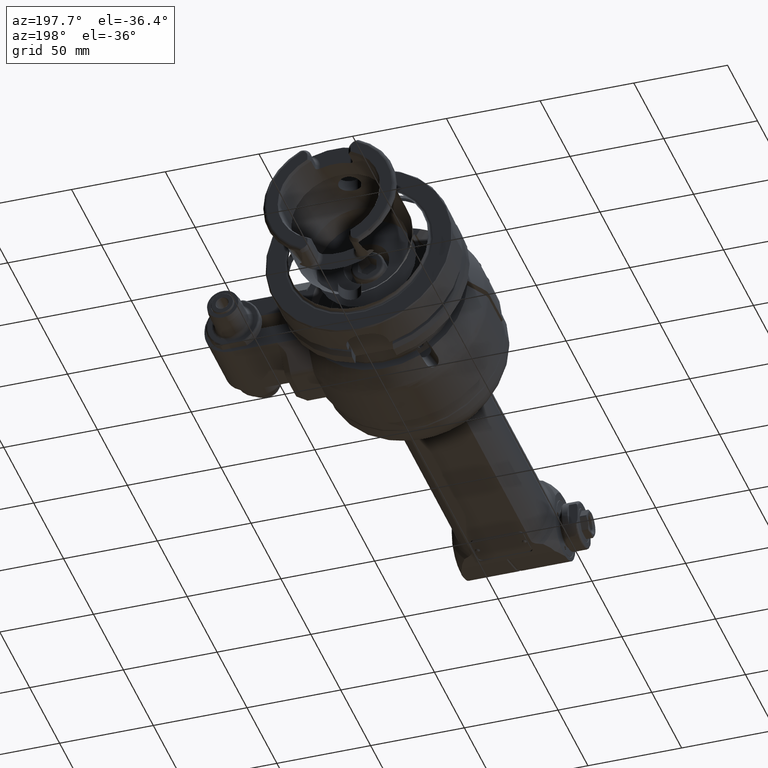
[diagram: clean part render]
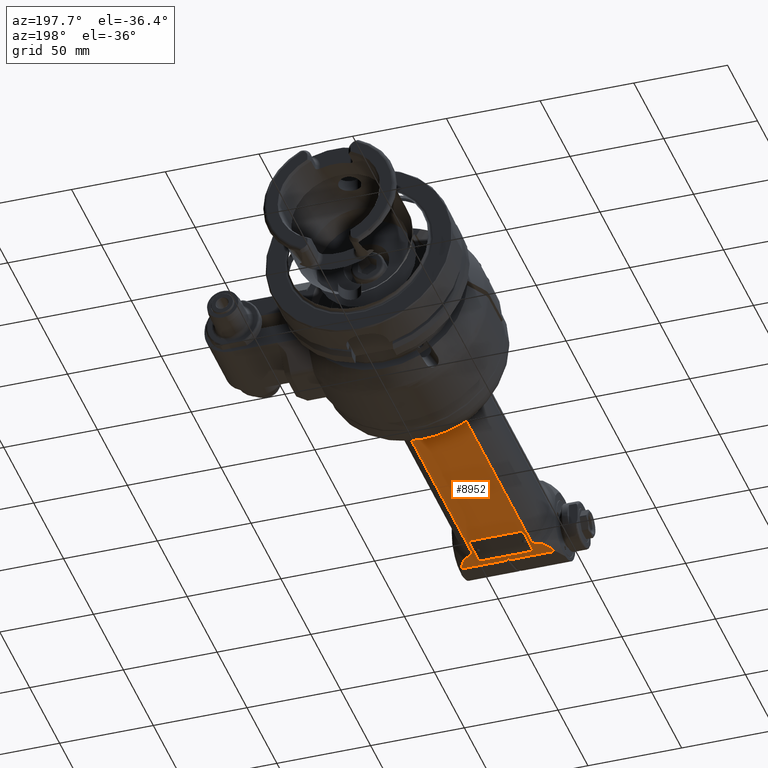
[diagram: same view with one face highlighted and labeled with its STEP entity id]
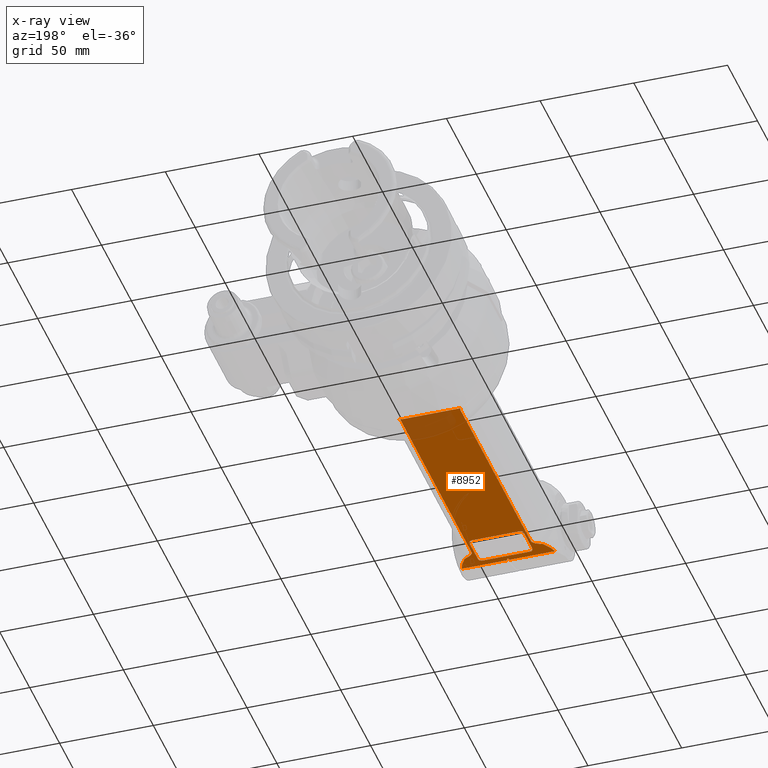
[diagram: x-ray of the same camera — body ghosted, the highlighted face saturated]
A machine part, auxiliary view. The second image highlights one B-rep face of the part: STEP entity #8952.
The next image is the same camera in x-ray: the body ghosted, the highlighted face saturated — about 12% of this face is hidden behind the body in this view.
In plain terms, the highlighted planar face has unit normal (0, 0, 1).
Its self-contained STEP definition (entity closure, byte-faithful):
#167=FACE_BOUND('',#1617,.T.);
#286=(
BOUNDED_CURVE()
B_SPLINE_CURVE(2,(#56974,#56975,#56976),.UNSPECIFIED.,.F.,.F.)
B_SPLINE_CURVE_WITH_KNOTS((3,3),(1.06457238206066,1.31559591796353),
 .UNSPECIFIED.)
CURVE()
GEOMETRIC_REPRESENTATION_ITEM()
RATIONAL_B_SPLINE_CURVE((1.25039827032433,1.27526090229318,1.2979263660166))
REPRESENTATION_ITEM('')
);
#288=(
BOUNDED_CURVE()
B_SPLINE_CURVE(2,(#56987,#56988,#56989),.UNSPECIFIED.,.F.,.F.)
B_SPLINE_CURVE_WITH_KNOTS((3,3),(-0.516400337504524,-0.239175027780507),
 .UNSPECIFIED.)
CURVE()
GEOMETRIC_REPRESENTATION_ITEM()
RATIONAL_B_SPLINE_CURVE((1.08175807390529,1.06139863950765,1.03933618902282))
REPRESENTATION_ITEM('')
);
#289=(
BOUNDED_CURVE()
B_SPLINE_CURVE(2,(#56991,#56992,#56993),.UNSPECIFIED.,.F.,.F.)
B_SPLINE_CURVE_WITH_KNOTS((3,3),(-0.251095684557566,-0.096604785959868),
 .UNSPECIFIED.)
CURVE()
GEOMETRIC_REPRESENTATION_ITEM()
RATIONAL_B_SPLINE_CURVE((1.02878333693949,1.02014305744285,1.01123890250901))
REPRESENTATION_ITEM('')
);
#290=(
BOUNDED_CURVE()
B_SPLINE_CURVE(2,(#56997,#56998,#56999),.UNSPECIFIED.,.F.,.F.)
B_SPLINE_CURVE_WITH_KNOTS((3,3),(-5.84507770998516,-5.60410979834286),
 .UNSPECIFIED.)
CURVE()
GEOMETRIC_REPRESENTATION_ITEM()
RATIONAL_B_SPLINE_CURVE((2.0991516275568,2.11669375284464,2.13092142245682))
REPRESENTATION_ITEM('')
);
#291=(
BOUNDED_CURVE()
B_SPLINE_CURVE(2,(#57021,#57022,#57023),.UNSPECIFIED.,.F.,.F.)
B_SPLINE_CURVE_WITH_KNOTS((3,3),(-3.53534677403727,-3.29437885793072),
 .UNSPECIFIED.)
CURVE()
GEOMETRIC_REPRESENTATION_ITEM()
RATIONAL_B_SPLINE_CURVE((2.13092145694075,2.11669378709901,2.09915166152828))
REPRESENTATION_ITEM('')
);
#292=(
BOUNDED_CURVE()
B_SPLINE_CURVE(2,(#57027,#57028,#57029),.UNSPECIFIED.,.F.,.F.)
B_SPLINE_CURVE_WITH_KNOTS((3,3),(-10.5228210849927,-10.3683301622899),
 .UNSPECIFIED.)
CURVE()
GEOMETRIC_REPRESENTATION_ITEM()
RATIONAL_B_SPLINE_CURVE((1.01123897320325,1.02014312875957,1.02878340886023))
REPRESENTATION_ITEM('')
);
#293=(
BOUNDED_CURVE()
B_SPLINE_CURVE(2,(#57030,#57031,#57032),.UNSPECIFIED.,.F.,.F.)
B_SPLINE_CURVE_WITH_KNOTS((3,3),(-7.42204388393568,-7.14481854557654),
 .UNSPECIFIED.)
CURVE()
GEOMETRIC_REPRESENTATION_ITEM()
RATIONAL_B_SPLINE_CURVE((1.03933624816308,1.06139869990331,1.08175813545943))
REPRESENTATION_ITEM('')
);
#294=(
BOUNDED_CURVE()
B_SPLINE_CURVE(2,(#57070,#57071,#57072),.UNSPECIFIED.,.F.,.F.)
B_SPLINE_CURVE_WITH_KNOTS((3,3),(-1.31559669706362,-1.06457311813805),
 .UNSPECIFIED.)
CURVE()
GEOMETRIC_REPRESENTATION_ITEM()
RATIONAL_B_SPLINE_CURVE((1.29792656170262,1.27526109456195,1.25039845884458))
REPRESENTATION_ITEM('')
);
#507=PLANE('',#9898);
#1037=FACE_OUTER_BOUND('',#1616,.T.);
#1616=EDGE_LOOP('',(#7654,#7655,#7656,#7657,#7658,#7659,#7660,#7661,#7662,
#7663,#7664,#7665,#7666,#7667,#7668,#7669,#7670,#7671));
#1617=EDGE_LOOP('',(#7672,#7673,#7674,#7675,#7676,#7677,#7678,#7679));
#2101=CIRCLE('',#9899,2.);
#2102=CIRCLE('',#9900,2.);
#2103=CIRCLE('',#9901,2.);
#2104=CIRCLE('',#9902,2.);
#2372=B_SPLINE_CURVE_WITH_KNOTS('',3,(#56957,#56958,#56959,#56960,#56961,
#56962,#56963,#56964,#56965,#56966,#56967,#56968,#56969,#56970),
 .UNSPECIFIED.,.F.,.F.,(4,2,2,2,2,2,4),(1.41793325150412,1.48239187870567,
1.54685050590722,1.63031823896693,1.71378597202664,1.81826425974736,1.83498601297406),
 .UNSPECIFIED.);
#2373=B_SPLINE_CURVE_WITH_KNOTS('',3,(#57001,#57002,#57003,#57004,#57005,
#57006,#57007,#57008,#57009,#57010,#57011,#57012,#57013,#57014,#57015,#57016,
#57017,#57018,#57019),.UNSPECIFIED.,.F.,.F.,(4,2,2,2,3,2,2,2,4),(0.471311837276489,
0.483317272137697,0.501097837827068,0.506833427337296,0.511781501848717,
0.516729576360138,0.522465165870366,0.540245731559737,0.552251166425842),
 .UNSPECIFIED.);
#2374=B_SPLINE_CURVE_WITH_KNOTS('',3,(#57034,#57035,#57036,#57037,#57038,
#57039,#57040,#57041),.UNSPECIFIED.,.F.,.F.,(4,2,2,4),(-1.91656842272116,
-1.90895424857153,-1.82809077640352,-1.7472273042355),.UNSPECIFIED.);
#2375=B_SPLINE_CURVE_WITH_KNOTS('',3,(#57045,#57046,#57047,#57048,#57049,
#57050,#57051,#57052),.UNSPECIFIED.,.F.,.F.,(4,2,2,4),(1.57788618575119,
1.58550035989947,1.66636383206749,1.7472273042355),.UNSPECIFIED.);
#2376=B_SPLINE_CURVE_WITH_KNOTS('',3,(#57056,#57057,#57058,#57059,#57060,
#57061,#57062,#57063,#57064,#57065,#57066,#57067,#57068,#57069),
 .UNSPECIFIED.,.F.,.F.,(4,2,2,2,2,2,4),(-1.83498601297378,-1.81826425974736,
-1.71378597202664,-1.63031823896693,-1.54685050590722,-1.48239187870567,
-1.41793325150412),.UNSPECIFIED.);
#2841=LINE('',#56953,#3440);
#2842=LINE('',#56995,#3441);
#2843=LINE('',#57025,#3442);
#2844=LINE('',#57043,#3443);
#2845=LINE('',#57054,#3444);
#2846=LINE('',#57075,#3445);
#2847=LINE('',#57079,#3446);
#2848=LINE('',#57083,#3447);
#2849=LINE('',#57087,#3448);
#3440=VECTOR('',#11983,117.4166943204);
#3441=VECTOR('',#11998,10.);
#3442=VECTOR('',#11999,10.);
#3443=VECTOR('',#12000,32.59043472594);
#3444=VECTOR('',#12001,117.4166943204);
#3445=VECTOR('',#12002,14.);
#3446=VECTOR('',#12005,25.);
#3447=VECTOR('',#12008,14.);
#3448=VECTOR('',#12011,25.);
#4214=VERTEX_POINT('',#56950);
#4215=VERTEX_POINT('',#56952);
#4216=VERTEX_POINT('',#56956);
#4217=VERTEX_POINT('',#56973);
#4220=VERTEX_POINT('',#56985);
#4221=VERTEX_POINT('',#56986);
#4222=VERTEX_POINT('',#56990);
#4223=VERTEX_POINT('',#56994);
#4224=VERTEX_POINT('',#56996);
#4225=VERTEX_POINT('',#57000);
#4226=VERTEX_POINT('',#57020);
#4227=VERTEX_POINT('',#57024);
#4228=VERTEX_POINT('',#57026);
#4229=VERTEX_POINT('',#57033);
#4230=VERTEX_POINT('',#57042);
#4231=VERTEX_POINT('',#57044);
#4232=VERTEX_POINT('',#57053);
#4233=VERTEX_POINT('',#57055);
#4234=VERTEX_POINT('',#57073);
#4235=VERTEX_POINT('',#57074);
#4236=VERTEX_POINT('',#57076);
#4237=VERTEX_POINT('',#57078);
#4238=VERTEX_POINT('',#57080);
#4239=VERTEX_POINT('',#57082);
#4240=VERTEX_POINT('',#57084);
#4241=VERTEX_POINT('',#57086);
#5401=EDGE_CURVE('',#4214,#4215,#2841,.T.);
#5403=EDGE_CURVE('',#4215,#4216,#2372,.T.);
#5405=EDGE_CURVE('',#4217,#4216,#286,.T.);
#5409=EDGE_CURVE('',#4220,#4221,#288,.T.);
#5410=EDGE_CURVE('',#4221,#4222,#289,.T.);
#5411=EDGE_CURVE('',#4222,#4223,#2842,.T.);
#5412=EDGE_CURVE('',#4224,#4223,#290,.T.);
#5413=EDGE_CURVE('',#4225,#4224,#2373,.F.);
#5414=EDGE_CURVE('',#4226,#4225,#291,.T.);
#5415=EDGE_CURVE('',#4226,#4227,#2843,.T.);
#5416=EDGE_CURVE('',#4227,#4228,#292,.T.);
#5417=EDGE_CURVE('',#4228,#4217,#293,.T.);
#5418=EDGE_CURVE('',#4229,#4214,#2374,.T.);
#5419=EDGE_CURVE('',#4230,#4229,#2844,.T.);
#5420=EDGE_CURVE('',#4230,#4231,#2375,.T.);
#5421=EDGE_CURVE('',#4232,#4231,#2845,.T.);
#5422=EDGE_CURVE('',#4233,#4232,#2376,.T.);
#5423=EDGE_CURVE('',#4233,#4220,#294,.T.);
#5424=EDGE_CURVE('',#4234,#4235,#2846,.T.);
#5425=EDGE_CURVE('',#4235,#4236,#2101,.T.);
#5426=EDGE_CURVE('',#4236,#4237,#2847,.T.);
#5427=EDGE_CURVE('',#4237,#4238,#2102,.T.);
#5428=EDGE_CURVE('',#4238,#4239,#2848,.T.);
#5429=EDGE_CURVE('',#4239,#4240,#2103,.T.);
#5430=EDGE_CURVE('',#4240,#4241,#2849,.T.);
#5431=EDGE_CURVE('',#4241,#4234,#2104,.T.);
#7654=ORIENTED_EDGE('',*,*,#5409,.T.);
#7655=ORIENTED_EDGE('',*,*,#5410,.T.);
#7656=ORIENTED_EDGE('',*,*,#5411,.T.);
#7657=ORIENTED_EDGE('',*,*,#5412,.F.);
#7658=ORIENTED_EDGE('',*,*,#5413,.F.);
#7659=ORIENTED_EDGE('',*,*,#5414,.F.);
#7660=ORIENTED_EDGE('',*,*,#5415,.T.);
#7661=ORIENTED_EDGE('',*,*,#5416,.T.);
#7662=ORIENTED_EDGE('',*,*,#5417,.T.);
#7663=ORIENTED_EDGE('',*,*,#5405,.T.);
#7664=ORIENTED_EDGE('',*,*,#5403,.F.);
#7665=ORIENTED_EDGE('',*,*,#5401,.F.);
#7666=ORIENTED_EDGE('',*,*,#5418,.F.);
#7667=ORIENTED_EDGE('',*,*,#5419,.F.);
#7668=ORIENTED_EDGE('',*,*,#5420,.T.);
#7669=ORIENTED_EDGE('',*,*,#5421,.F.);
#7670=ORIENTED_EDGE('',*,*,#5422,.F.);
#7671=ORIENTED_EDGE('',*,*,#5423,.T.);
#7672=ORIENTED_EDGE('',*,*,#5424,.T.);
#7673=ORIENTED_EDGE('',*,*,#5425,.T.);
#7674=ORIENTED_EDGE('',*,*,#5426,.T.);
#7675=ORIENTED_EDGE('',*,*,#5427,.T.);
#7676=ORIENTED_EDGE('',*,*,#5428,.T.);
#7677=ORIENTED_EDGE('',*,*,#5429,.T.);
#7678=ORIENTED_EDGE('',*,*,#5430,.T.);
#7679=ORIENTED_EDGE('',*,*,#5431,.T.);
#8952=ADVANCED_FACE('',(#1037,#167),#507,.F.);
#9898=AXIS2_PLACEMENT_3D('',#56984,#11996,#11997);
#9899=AXIS2_PLACEMENT_3D('',#57077,#12003,#12004);
#9900=AXIS2_PLACEMENT_3D('',#57081,#12006,#12007);
#9901=AXIS2_PLACEMENT_3D('',#57085,#12009,#12010);
#9902=AXIS2_PLACEMENT_3D('',#57088,#12012,#12013);
#11983=DIRECTION('',(1.,0.,0.));
#11996=DIRECTION('center_axis',(0.,0.,1.));
#11997=DIRECTION('ref_axis',(1.,0.,0.));
#11998=DIRECTION('',(0.,-1.,0.));
#11999=DIRECTION('',(0.,-1.,0.));
#12000=DIRECTION('',(-4.142415433537E-13,-1.,-1.831383665353E-14));
#12001=DIRECTION('',(-1.,0.,0.));
#12002=DIRECTION('',(-1.,0.,0.));
#12003=DIRECTION('center_axis',(0.,0.,1.));
#12004=DIRECTION('ref_axis',(-3.410605131648E-13,1.,0.));
#12005=DIRECTION('',(0.,-1.,0.));
#12006=DIRECTION('center_axis',(0.,0.,1.));
#12007=DIRECTION('ref_axis',(-1.,0.,0.));
#12008=DIRECTION('',(1.,0.,0.));
#12009=DIRECTION('center_axis',(0.,0.,1.));
#12010=DIRECTION('ref_axis',(0.,-1.,0.));
#12011=DIRECTION('',(0.,1.,0.));
#12012=DIRECTION('center_axis',(0.,0.,1.));
#12013=DIRECTION('ref_axis',(1.,0.,0.));
#56950=CARTESIAN_POINT('',(68.50103747742,-15.81929201956,-20.));
#56952=CARTESIAN_POINT('',(185.9177317978,-15.81929201956,-20.));
#56953=CARTESIAN_POINT('',(68.50103747742,-15.81929201956,-20.));
#56956=CARTESIAN_POINT('',(189.194340066109,-18.4431507451734,-19.9999999387869));
#56957=CARTESIAN_POINT('Ctrl Pts',(185.9177317978,-15.8192920195564,-20.));
#56958=CARTESIAN_POINT('Ctrl Pts',(186.132593888472,-15.8192920195564,-20.));
#56959=CARTESIAN_POINT('Ctrl Pts',(186.365447868562,-15.8493383555497,-20.));
#56960=CARTESIAN_POINT('Ctrl Pts',(186.814833472066,-15.9724307903183,-20.));
#56961=CARTESIAN_POINT('Ctrl Pts',(187.031498144669,-16.0649906372325,-20.));
#56962=CARTESIAN_POINT('Ctrl Pts',(187.463973040054,-16.3018473660257,-20.));
#56963=CARTESIAN_POINT('Ctrl Pts',(187.710168959505,-16.4801758064256,-20.));
#56964=CARTESIAN_POINT('Ctrl Pts',(188.157972195965,-16.8881912998672,-20.));
#56965=CARTESIAN_POINT('Ctrl Pts',(188.360081587315,-17.1173269779209,-20.));
#56966=CARTESIAN_POINT('Ctrl Pts',(188.739274313323,-17.6160237864576,-20.));
#56967=CARTESIAN_POINT('Ctrl Pts',(188.941524617473,-17.9397924573066,-20.));
#56968=CARTESIAN_POINT('Ctrl Pts',(189.141412830513,-18.3335130779206,-20.));
#56969=CARTESIAN_POINT('Ctrl Pts',(189.168263387275,-18.3882155377432,-20.));
#56970=CARTESIAN_POINT('Ctrl Pts',(189.194340091854,-18.4431507329528,-20.));
#56973=CARTESIAN_POINT('',(190.450726497459,-21.0000001781993,-19.9999999486282));
#56974=CARTESIAN_POINT('Ctrl Pts',(190.450726478872,-21.0000001877162,-20.));
#56975=CARTESIAN_POINT('Ctrl Pts',(189.781811502553,-19.6807631403158,-20.));
#56976=CARTESIAN_POINT('Ctrl Pts',(189.194340091814,-18.4431507329729,-20.));
#56984=CARTESIAN_POINT('Origin',(198.0419400363,-27.,-20.));
#56985=CARTESIAN_POINT('',(190.450726497459,21.0000001781988,-19.9999999486283));
#56986=CARTESIAN_POINT('',(194.739740351338,23.6854386473558,-19.9999999734038));
#56987=CARTESIAN_POINT('Ctrl Pts',(190.450726545273,21.0000001040511,-20.));
#56988=CARTESIAN_POINT('Ctrl Pts',(192.466356087147,22.2979620652777,-20.));
#56989=CARTESIAN_POINT('Ctrl Pts',(194.739740354088,23.6854386436152,-20.));
#56990=CARTESIAN_POINT('',(198.041940022832,24.8322745421386,-20.0000000017384));
#56991=CARTESIAN_POINT('Ctrl Pts',(194.739740363553,23.6854386133291,-20.));
#56992=CARTESIAN_POINT('Ctrl Pts',(196.351812371421,24.2507882953335,-20.));
#56993=CARTESIAN_POINT('Ctrl Pts',(198.041940020889,24.8322745477861,-20.));
#56994=CARTESIAN_POINT('',(198.041940031986,0.637070516371887,-20.0000000005573));
#56995=CARTESIAN_POINT('',(198.041940036219,-27.,-20.));
#56996=CARTESIAN_POINT('',(197.058921790166,0.282843784845248,-19.9999999890832));
#56997=CARTESIAN_POINT('Ctrl Pts',(197.05892178452,0.282843799134463,-20.));
#56998=CARTESIAN_POINT('Ctrl Pts',(197.557563037468,0.479749603979258,-20.));
#56999=CARTESIAN_POINT('Ctrl Pts',(198.041940031889,0.637070516652184,-20.));
#57000=CARTESIAN_POINT('',(197.058921790214,-0.282843784867021,-19.999999989083));
#57001=CARTESIAN_POINT('Ctrl Pts',(197.058921784996,0.282843799319558,-20.));
#57002=CARTESIAN_POINT('Ctrl Pts',(197.018426773307,0.266853061405214,-20.));
#57003=CARTESIAN_POINT('Ctrl Pts',(196.97962026057,0.248581179760353,-20.));
#57004=CARTESIAN_POINT('Ctrl Pts',(196.893670584173,0.198877098745626,-20.));
#57005=CARTESIAN_POINT('Ctrl Pts',(196.837221271762,0.155612200871826,-20.));
#57006=CARTESIAN_POINT('Ctrl Pts',(196.793614695098,0.0904737553353333,
-20.));
#57007=CARTESIAN_POINT('Ctrl Pts',(196.783271863761,0.0699950436471656,
-20.));
#57008=CARTESIAN_POINT('Ctrl Pts',(196.772560933944,0.0360317439534497,
-20.));
#57009=CARTESIAN_POINT('Ctrl Pts',(196.769399403005,0.0164935817047726,
-20.));
#57010=CARTESIAN_POINT('Ctrl Pts',(196.769399403005,3.5527136788005E-14,
-20.));
#57011=CARTESIAN_POINT('Ctrl Pts',(196.769399403005,-0.0164935817047016,
-20.));
#57012=CARTESIAN_POINT('Ctrl Pts',(196.772560933944,-0.0360317439533785,
-20.));
#57013=CARTESIAN_POINT('Ctrl Pts',(196.783271863761,-0.0699950436470947,
-20.));
#57014=CARTESIAN_POINT('Ctrl Pts',(196.793614695098,-0.0904737553352621,
-20.));
#57015=CARTESIAN_POINT('Ctrl Pts',(196.837221271762,-0.155612200871755,
-20.));
#57016=CARTESIAN_POINT('Ctrl Pts',(196.893670584173,-0.198877098745554,
-20.));
#57017=CARTESIAN_POINT('Ctrl Pts',(196.979620260584,-0.248581179768453,
-20.));
#57018=CARTESIAN_POINT('Ctrl Pts',(197.018426773339,-0.266853061420007,
-20.));
#57019=CARTESIAN_POINT('Ctrl Pts',(197.058921785046,-0.282843799339057,
-20.));
#57020=CARTESIAN_POINT('',(198.041940031986,-0.637070516377685,-20.0000000005574));
#57021=CARTESIAN_POINT('Ctrl Pts',(198.041940031889,-0.637070516657975,
-20.));
#57022=CARTESIAN_POINT('Ctrl Pts',(197.557563037491,-0.479749603992555,
-20.));
#57023=CARTESIAN_POINT('Ctrl Pts',(197.058921784568,-0.282843799159076,
-20.));
#57024=CARTESIAN_POINT('',(198.041940022831,-24.8322745421383,-20.0000000017384));
#57025=CARTESIAN_POINT('',(198.041940036219,-27.,-20.));
#57026=CARTESIAN_POINT('',(194.739740351338,-23.6854386473556,-19.9999999734039));
#57027=CARTESIAN_POINT('Ctrl Pts',(198.041940020889,-24.8322745477859,-20.));
#57028=CARTESIAN_POINT('Ctrl Pts',(196.351812371421,-24.2507882953333,-20.));
#57029=CARTESIAN_POINT('Ctrl Pts',(194.739740363553,-23.685438613329,-20.));
#57030=CARTESIAN_POINT('Ctrl Pts',(194.739740354087,-23.6854386436151,-20.));
#57031=CARTESIAN_POINT('Ctrl Pts',(192.466356087147,-22.2979620652778,-20.));
#57032=CARTESIAN_POINT('Ctrl Pts',(190.450726545274,-21.0000001040514,-20.));
#57033=CARTESIAN_POINT('',(66.80083020089,-16.29521736298,-20.));
#57034=CARTESIAN_POINT('Ctrl Pts',(66.8008302008892,-16.2952173629786,-20.));
#57035=CARTESIAN_POINT('Ctrl Pts',(66.8231184104623,-16.282458422687,-20.));
#57036=CARTESIAN_POINT('Ctrl Pts',(66.8453989105801,-16.2699786801914,-20.));
#57037=CARTESIAN_POINT('Ctrl Pts',(67.1040398042386,-16.1282538360826,-20.));
#57038=CARTESIAN_POINT('Ctrl Pts',(67.3757766929904,-16.0119361033134,-20.));
#57039=CARTESIAN_POINT('Ctrl Pts',(67.9394152683992,-15.8571351272388,-20.));
#57040=CARTESIAN_POINT('Ctrl Pts',(68.2314925701933,-15.8192920195564,-20.));
#57041=CARTESIAN_POINT('Ctrl Pts',(68.50103747742,-15.8192920195564,-20.));
#57042=CARTESIAN_POINT('',(66.8008302009,16.29521736297,-20.));
#57043=CARTESIAN_POINT('',(66.8008302009,16.29521736297,-20.));
#57044=CARTESIAN_POINT('',(68.50103747742,15.81929201956,-20.));
#57045=CARTESIAN_POINT('Ctrl Pts',(66.800830200901,16.2952173629718,-20.));
#57046=CARTESIAN_POINT('Ctrl Pts',(66.8231184104701,16.2824584226826,-20.));
#57047=CARTESIAN_POINT('Ctrl Pts',(66.8453989105841,16.2699786801893,-20.));
#57048=CARTESIAN_POINT('Ctrl Pts',(67.1040398042386,16.1282538360826,-20.));
#57049=CARTESIAN_POINT('Ctrl Pts',(67.3757766929904,16.0119361033134,-20.));
#57050=CARTESIAN_POINT('Ctrl Pts',(67.9394152683992,15.8571351272388,-20.));
#57051=CARTESIAN_POINT('Ctrl Pts',(68.2314925701933,15.8192920195564,-20.));
#57052=CARTESIAN_POINT('Ctrl Pts',(68.50103747742,15.8192920195564,-20.));
#57053=CARTESIAN_POINT('',(185.9177317978,15.81929201956,-20.));
#57054=CARTESIAN_POINT('',(185.9177317978,15.81929201956,-20.));
#57055=CARTESIAN_POINT('',(189.194340066108,18.4431507451705,-19.9999999387876));
#57056=CARTESIAN_POINT('Ctrl Pts',(189.194340091853,18.44315073295,-20.));
#57057=CARTESIAN_POINT('Ctrl Pts',(189.168263387275,18.3882155377413,-20.));
#57058=CARTESIAN_POINT('Ctrl Pts',(189.141412830513,18.3335130779197,-20.));
#57059=CARTESIAN_POINT('Ctrl Pts',(188.941524617473,17.9397924573066,-20.));
#57060=CARTESIAN_POINT('Ctrl Pts',(188.739274313323,17.6160237864576,-20.));
#57061=CARTESIAN_POINT('Ctrl Pts',(188.360081587315,17.1173269779209,-20.));
#57062=CARTESIAN_POINT('Ctrl Pts',(188.157972195965,16.8881912998672,-20.));
#57063=CARTESIAN_POINT('Ctrl Pts',(187.710168959505,16.4801758064256,-20.));
#57064=CARTESIAN_POINT('Ctrl Pts',(187.463973040054,16.3018473660257,-20.));
#57065=CARTESIAN_POINT('Ctrl Pts',(187.031498144669,16.0649906372325,-20.));
#57066=CARTESIAN_POINT('Ctrl Pts',(186.814833472066,15.9724307903183,-20.));
#57067=CARTESIAN_POINT('Ctrl Pts',(186.365447868562,15.8493383555497,-20.));
#57068=CARTESIAN_POINT('Ctrl Pts',(186.132593888472,15.8192920195564,-20.));
#57069=CARTESIAN_POINT('Ctrl Pts',(185.9177317978,15.8192920195564,-20.));
#57070=CARTESIAN_POINT('Ctrl Pts',(189.194340091813,18.4431507329701,-20.));
#57071=CARTESIAN_POINT('Ctrl Pts',(189.781811502552,19.680763140314,-20.));
#57072=CARTESIAN_POINT('Ctrl Pts',(190.450726478872,21.0000001877157,-20.));
#57073=CARTESIAN_POINT('',(192.5,14.5,-20.));
#57074=CARTESIAN_POINT('',(178.5,14.5,-20.));
#57075=CARTESIAN_POINT('',(192.5,14.5,-20.));
#57076=CARTESIAN_POINT('',(176.5,12.5,-20.));
#57077=CARTESIAN_POINT('Origin',(178.5,12.5,-20.));
#57078=CARTESIAN_POINT('',(176.5,-12.5,-20.));
#57079=CARTESIAN_POINT('',(176.5,12.5,-20.));
#57080=CARTESIAN_POINT('',(178.5,-14.5,-20.));
#57081=CARTESIAN_POINT('Origin',(178.5,-12.5,-20.));
#57082=CARTESIAN_POINT('',(192.5,-14.5,-20.));
#57083=CARTESIAN_POINT('',(178.5,-14.5,-20.));
#57084=CARTESIAN_POINT('',(194.5,-12.5,-20.));
#57085=CARTESIAN_POINT('Origin',(192.5,-12.5,-20.));
#57086=CARTESIAN_POINT('',(194.5,12.5,-20.));
#57087=CARTESIAN_POINT('',(194.5,-12.5,-20.));
#57088=CARTESIAN_POINT('Origin',(192.5,12.5,-20.));